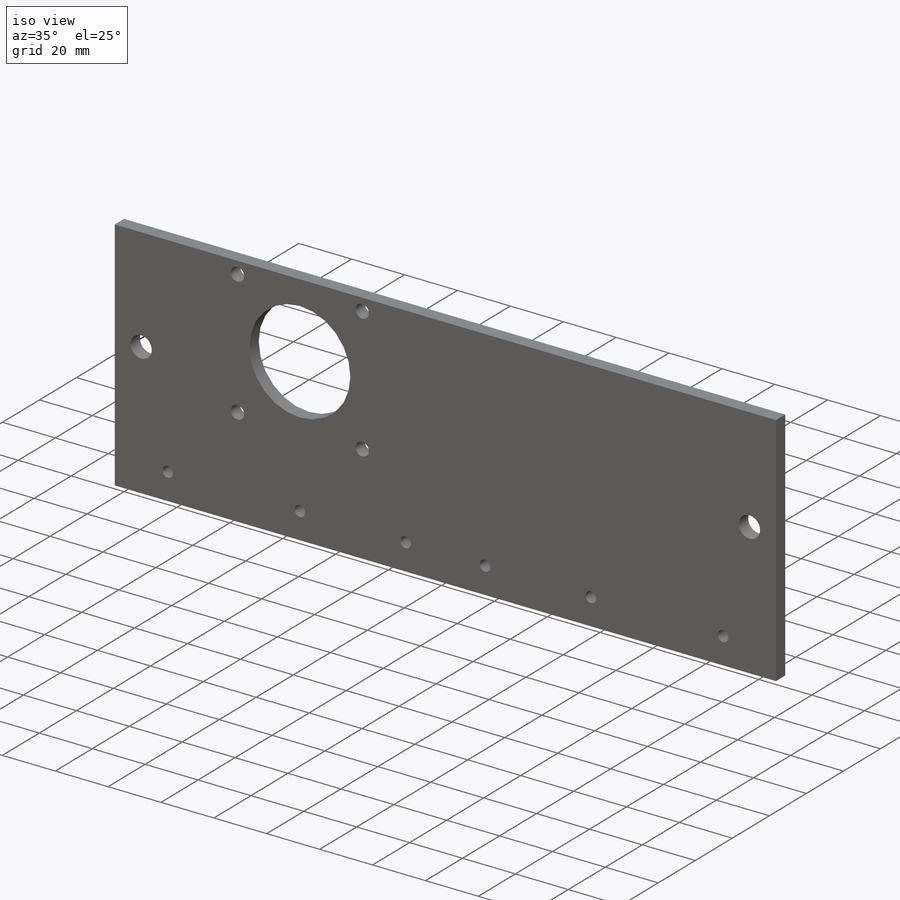
[diagram: iso view]
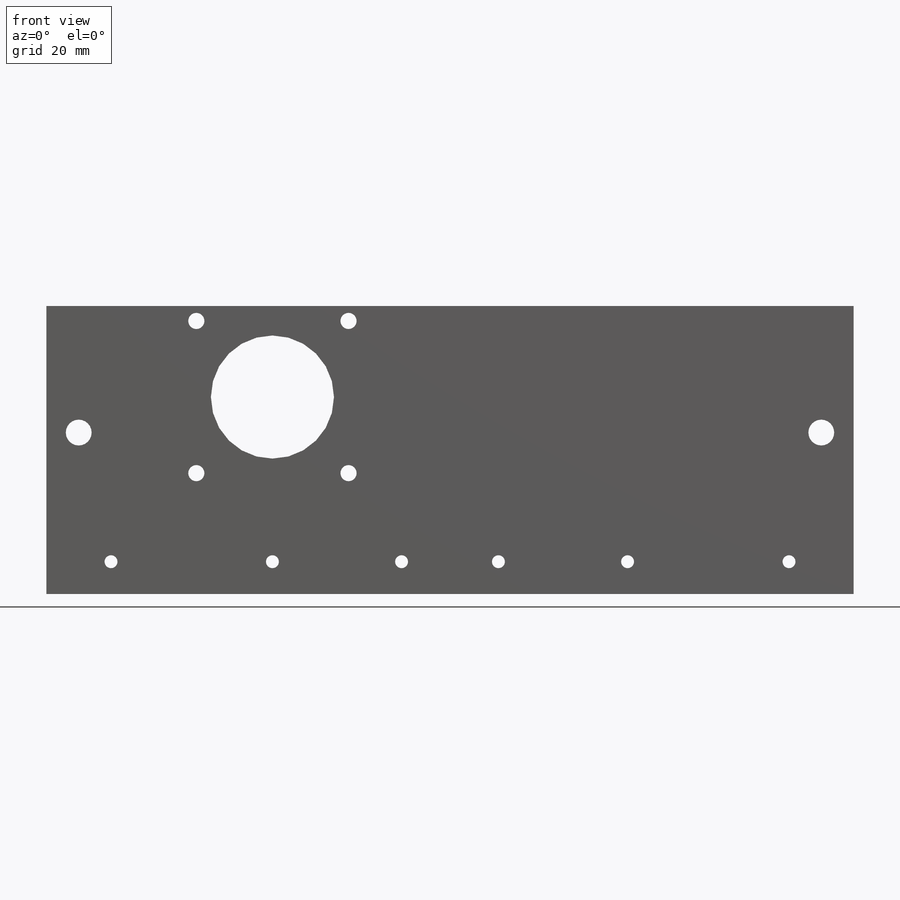
[diagram: front view]
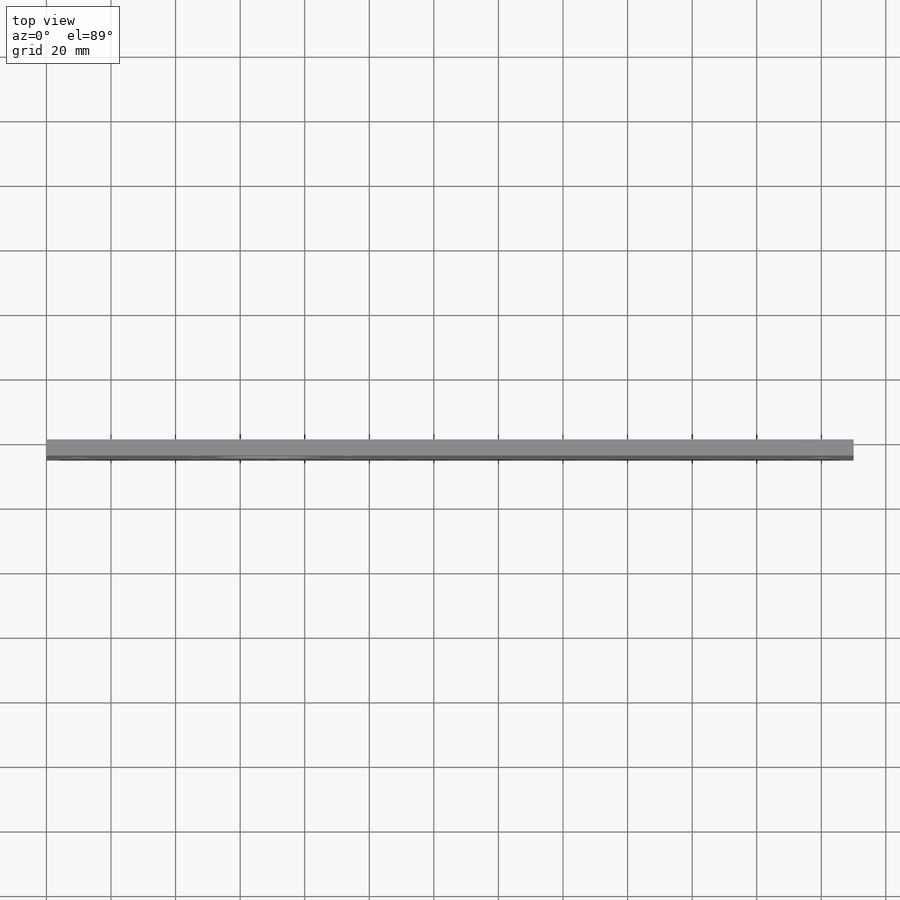
[diagram: top view]
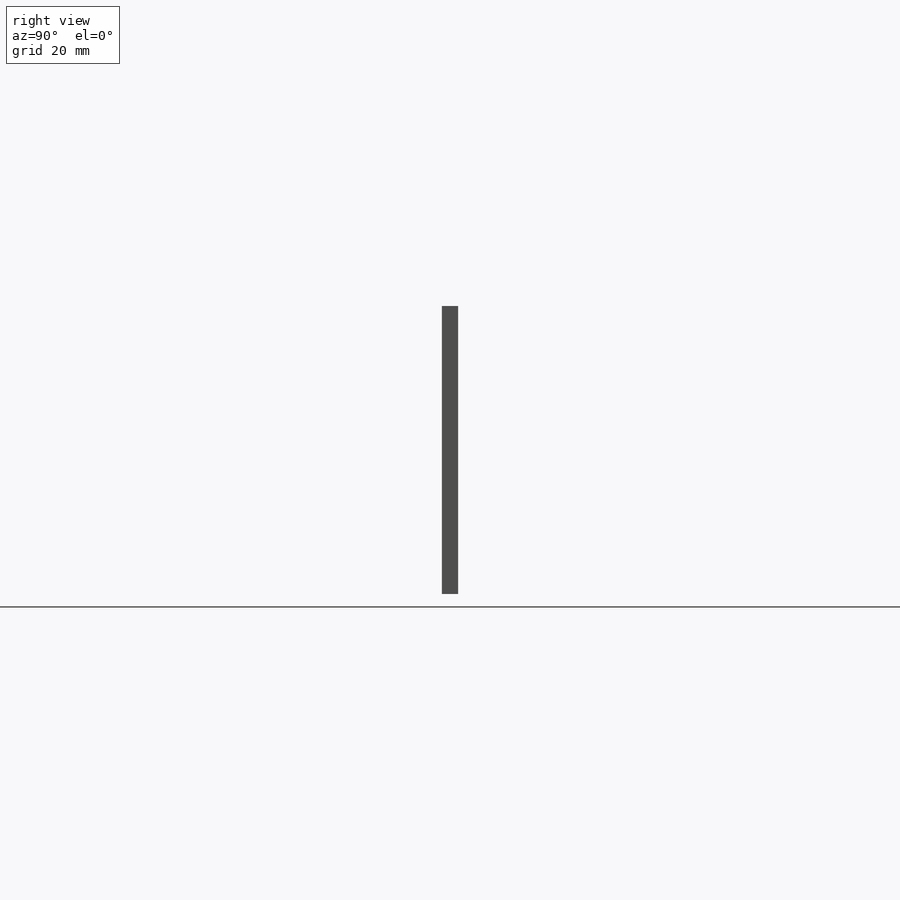
[diagram: right view]
SOLIDWORKS PART (.sldprt)
format: sldprt  version: not decoded by parser v0  size: 205,824 bytes
history: native  units: mm
features: sketch x4, plane x3, cut_extrude x3, material x1, extrude x1 (+9 scaffold rows collapsed)
feature tree (21):
  scaffold x9  (default folders/planes/origin — collapsed)
  material  "Material <nicht festgelegt>"
  plane  "Ebene vorne"
  plane  "Ebene oben"
  plane  "Ebene rechts"
  sketch  "Skizze1"  dims[D1=89.2mm D2=250.0mm]
  extrude  "Aufsatz-Linear austragen1"  Depth=5mm
  sketch  "Skizze2"  dims[c1.D2=4.0mm c1.D12=8.0mm c1.D1=10.0mm c2.D2=~96.85387mm c3.D2=90.0deg c3.D3=20.0mm c3.D4=20.0mm c3.D5=70.0mm c3.D6=70.0mm c3.D7=110.0mm c3.D8=110.0mm c3.D9=50.0mm c3.D10=10.0mm c3.D11=10.0mm]
  cut_extrude  "Schnitt-Linear austragen1"  Depth=27mm
  sketch  "Skizze3"  dims[c1.D1=5.0mm c1.D2=46.43mm c1.D3=4.63mm c1.D4=47.14mm c1.D5=47.14mm c2.D2=46.43mm]
  cut_extrude  "Schnitt-Linear austragen2"  Depth=27mm
  sketch  "Skizze4"  dims[c1.D1=38.125mm c1.D2=28.2mm c1.D3=~77.209087mm c2.D3=90.0deg c3.D3=70.0mm]
  cut_extrude  "Schnitt-Linear austragen3"  Depth=27mm
decode coverage: 8 of 8 modeling features carry decoded parameters
note: ~ marks probable driven/reference dimensions
note: suppression state not decoded; provenance and decode notes live in map.json
